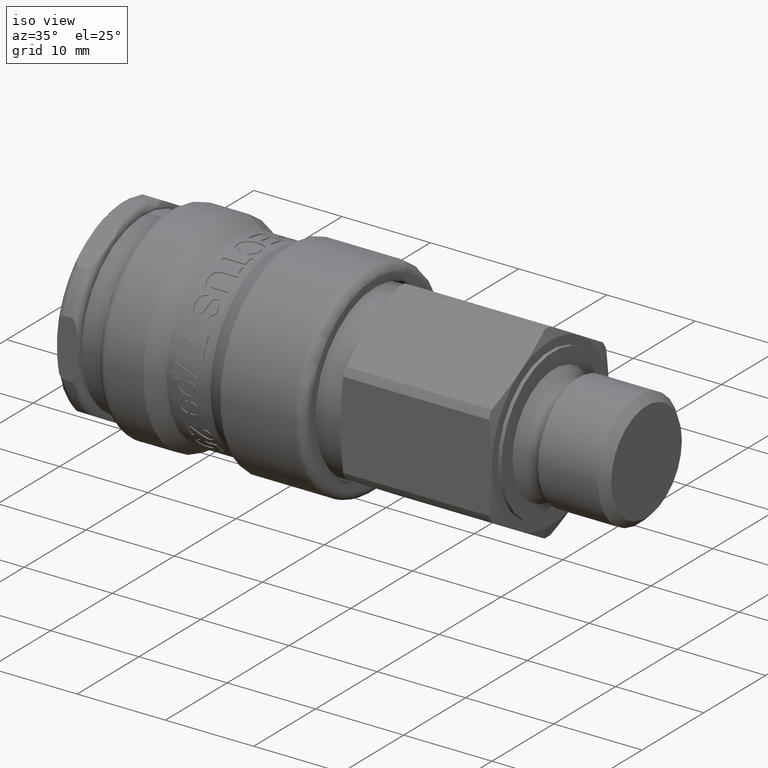
[diagram: clean part render]
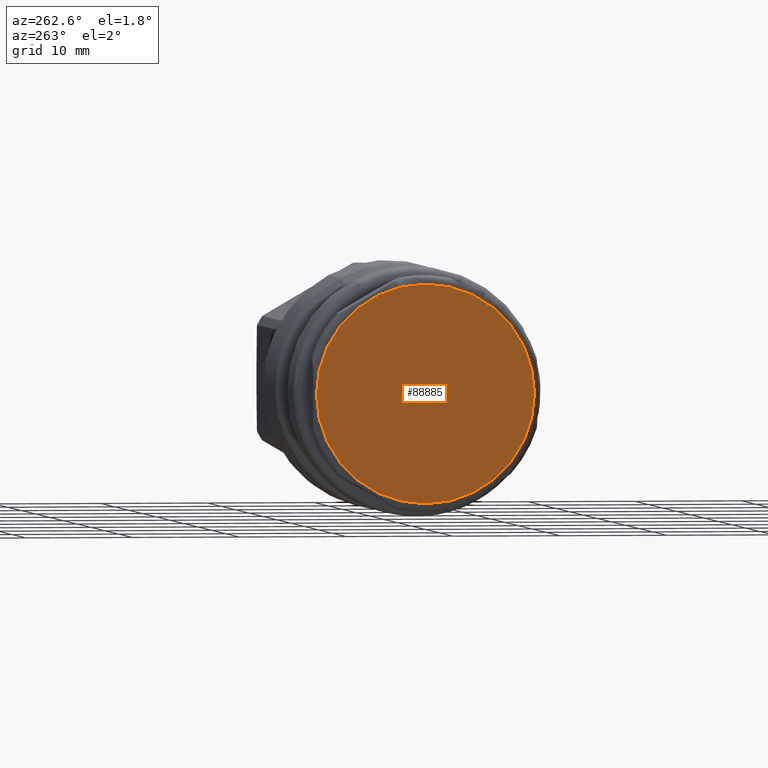
[diagram: tour spotlight — one face highlighted and labeled with its STEP entity id]
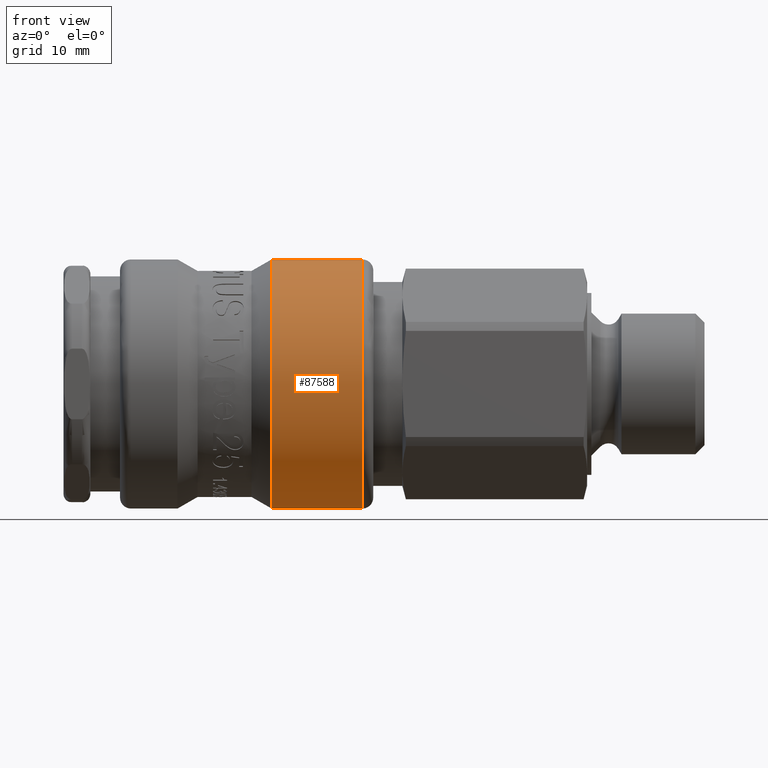
[diagram: tour spotlight — one face highlighted and labeled with its STEP entity id]
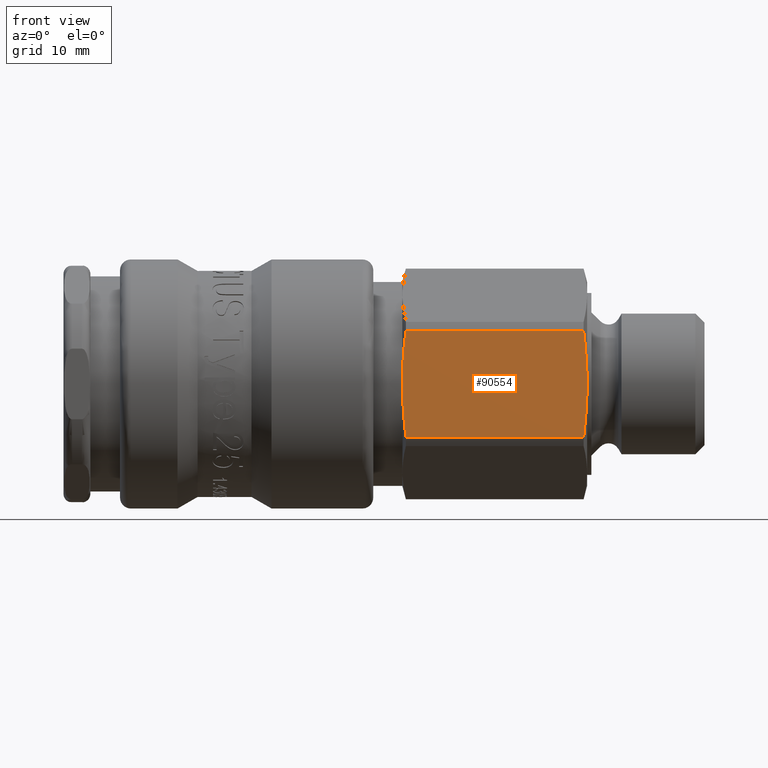
[diagram: tour spotlight — one face highlighted and labeled with its STEP entity id]
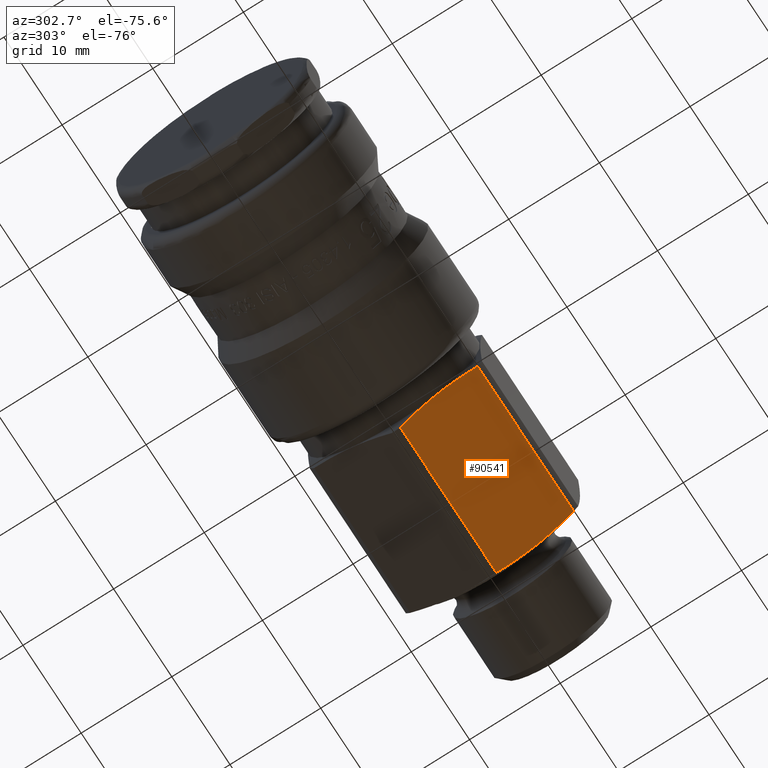
[diagram: tour spotlight — one face highlighted and labeled with its STEP entity id]
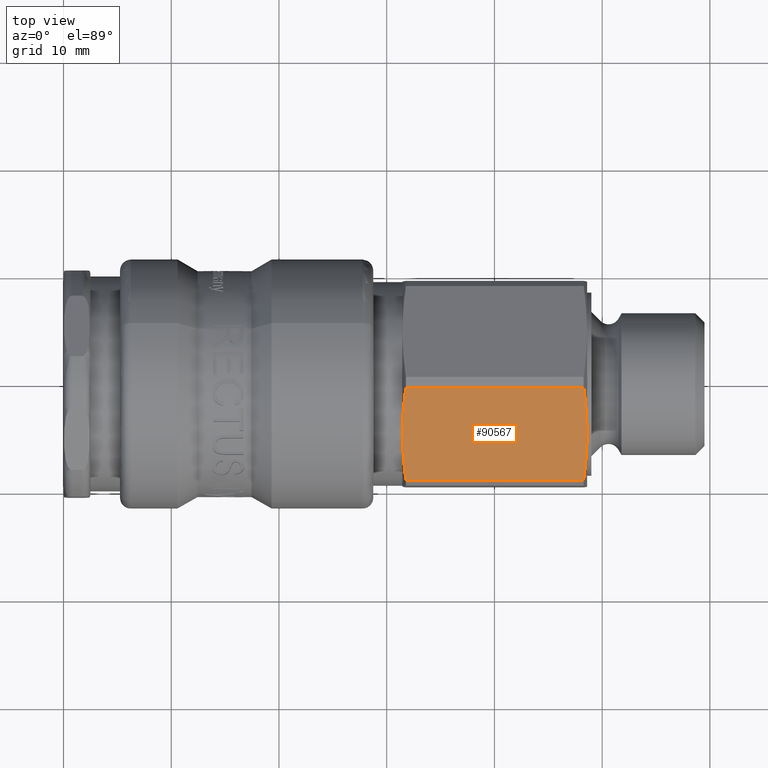
[diagram: tour spotlight — one face highlighted and labeled with its STEP entity id]
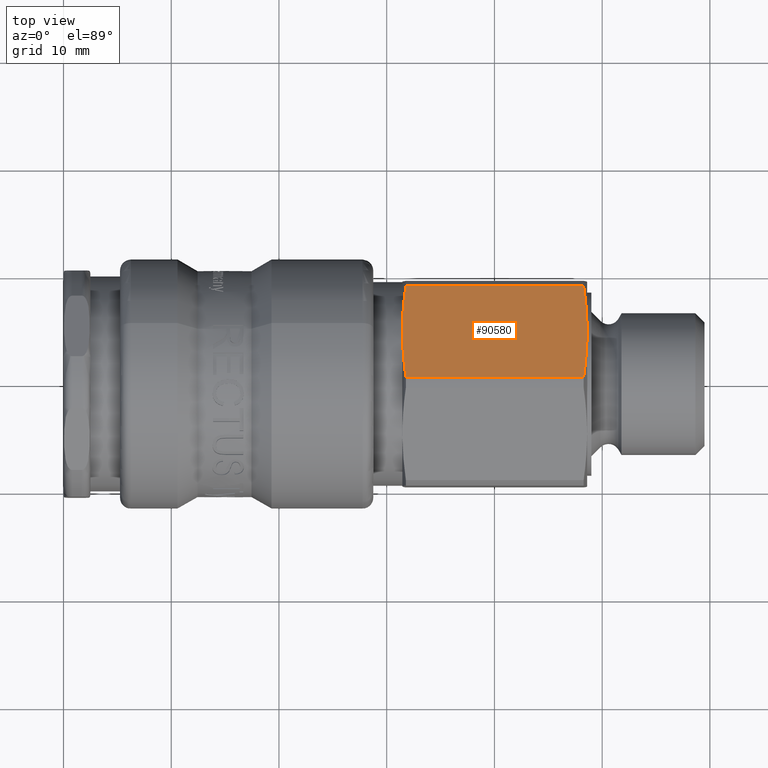
[diagram: tour spotlight — one face highlighted and labeled with its STEP entity id]
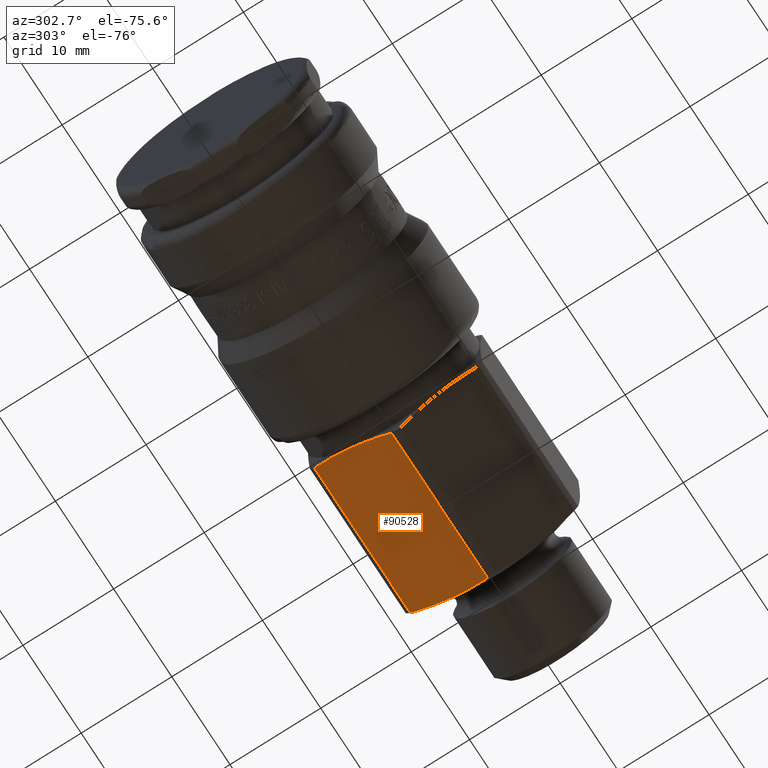
[diagram: tour spotlight — one face highlighted and labeled with its STEP entity id]
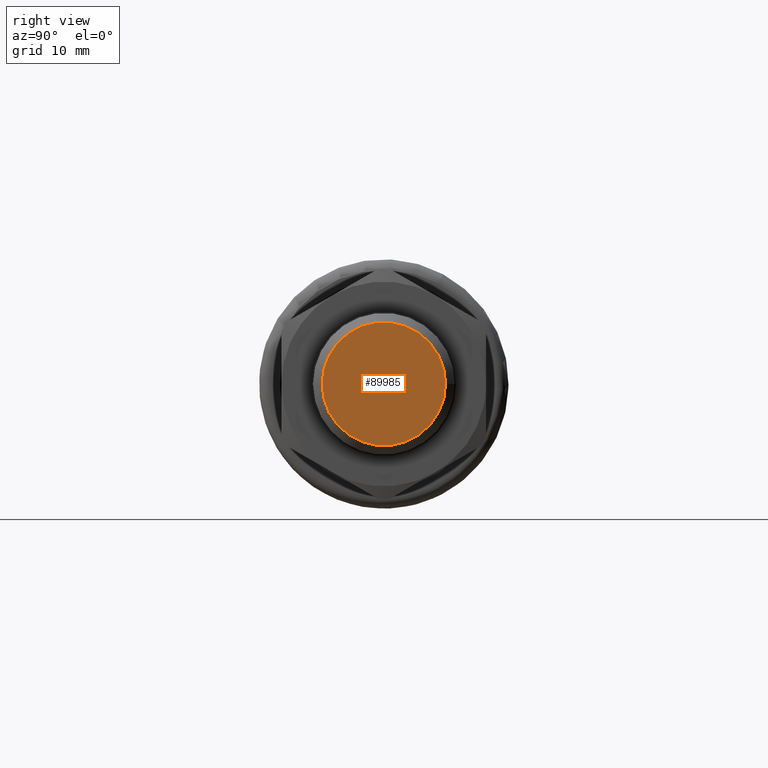
[diagram: tour spotlight — one face highlighted and labeled with its STEP entity id]
A machine part: a face-by-face anatomy tour. The part has 616 B-rep faces; the first image is the clean iso view, then the 8 largest visible faces are spotlighted one at a time (largest first), each with its STEP entity span.

Face 1 — auxiliary view, entity #88885. In plain terms, the highlighted planar face has unit normal (-1, 0, 0).
Definition (entity closure, byte-faithful):
#88869=CARTESIAN_POINT('',(-1.324698E-015,8.750000000000002,0.0));
#88870=DIRECTION('',(-1.0,0.0,0.0));
#88871=DIRECTION('',(0.0,0.0,1.0));
#88872=AXIS2_PLACEMENT_3D('',#88869,#88870,#88871);
#88873=PLANE('',#88872);
#88874=CARTESIAN_POINT('',(-1.387779E-015,10.199999999999999,0.0));
#88875=VERTEX_POINT('',#88874);
#88876=CARTESIAN_POINT('',(-1.387779E-015,0.0,0.0));
#88877=DIRECTION('',(1.0,0.0,0.0));
#88878=DIRECTION('',(0.0,-1.0,0.0));
#88879=AXIS2_PLACEMENT_3D('',#88876,#88877,#88878);
#88880=CIRCLE('',#88879,10.199999999999999);
#88881=EDGE_CURVE('',#88875,#88875,#88880,.T.);
#88882=ORIENTED_EDGE('',*,*,#88881,.F.);
#88883=EDGE_LOOP('',(#88882));
#88884=FACE_OUTER_BOUND('',#88883,.T.);
#88885=ADVANCED_FACE('',(#88884),#88873,.T.);

Face 2 — front view, entity #87588. In plain terms, the highlighted cylindrical surface (bore or boss wall) has radius 11.575 mm, axis along (1, 0, 0).
Definition (entity closure, byte-faithful):
#87546=CARTESIAN_POINT('',(27.75,5.497306160585965,10.186277532876453));
#87547=VERTEX_POINT('',#87546);
#87548=CARTESIAN_POINT('',(27.75,0.0,0.0));
#87549=DIRECTION('',(1.0,0.0,0.0));
#87550=DIRECTION('',(0.0,-0.474929257933993,-0.880023976922372));
#87551=AXIS2_PLACEMENT_3D('',#87548,#87549,#87550);
#87552=CIRCLE('',#87551,11.574999999999999);
#87553=EDGE_CURVE('',#87547,#87547,#87552,.T.);
#87569=CARTESIAN_POINT('',(24.030977309068273,0.0,0.0));
#87570=DIRECTION('',(1.0,0.0,0.0));
#87571=DIRECTION('',(0.0,0.474929257933993,0.880023976922372));
#87572=AXIS2_PLACEMENT_3D('',#87569,#87570,#87571);
#87573=CYLINDRICAL_SURFACE('',#87572,11.574999999999999);
#87574=CARTESIAN_POINT('',(19.311954618136546,5.497306160585965,10.186277532876453));
#87575=VERTEX_POINT('',#87574);
#87576=CARTESIAN_POINT('',(19.311954618136546,0.0,0.0));
#87577=DIRECTION('',(1.0,0.0,0.0));
#87578=DIRECTION('',(0.0,0.474929257933993,0.880023976922372));
#87579=AXIS2_PLACEMENT_3D('',#87576,#87577,#87578);
#87580=CIRCLE('',#87579,11.574999999999999);
#87581=EDGE_CURVE('',#87575,#87575,#87580,.T.);
#87582=ORIENTED_EDGE('',*,*,#87581,.T.);
#87583=EDGE_LOOP('',(#87582));
#87584=FACE_OUTER_BOUND('',#87583,.T.);
#87585=ORIENTED_EDGE('',*,*,#87553,.F.);
#87586=EDGE_LOOP('',(#87585));
#87587=FACE_BOUND('',#87586,.T.);
#87588=ADVANCED_FACE('',(#87584,#87587),#87573,.T.);

Face 3 — front view, entity #90554. In plain terms, the highlighted planar face has unit normal (0, 1, 0).
Definition (entity closure, byte-faithful):
#89798=CARTESIAN_POINT('',(48.599999999999987,-9.500000000000034,-1.582068E-015));
#89799=VERTEX_POINT('',#89798);
#90105=CARTESIAN_POINT('',(48.278460969082637,-9.500000000000036,4.92341345003646));
#90106=VERTEX_POINT('',#90105);
#90114=CARTESIAN_POINT('',(48.278460969082637,-9.500000000000036,4.923413450036498));
#90115=CARTESIAN_POINT('',(48.599999999999987,-9.500000000000034,2.315466721551831));
#90116=CARTESIAN_POINT('',(48.599999999999987,-9.500000000000034,-1.582068E-015));
#90124=(BOUNDED_CURVE()B_SPLINE_CURVE(2,(#90114,#90115,#90116),.UNSPECIFIED.,.F.,.U.)B_SPLINE_CURVE_WITH_KNOTS((3,3),(0.0,0.493628243022417),.UNSPECIFIED.)CURVE()GEOMETRIC_REPRESENTATION_ITEM()RATIONAL_B_SPLINE_CURVE((1.0,1.03109548284173,1.0))REPRESENTATION_ITEM(''));
#90125=EDGE_CURVE('',#90106,#89799,#90124,.T.);
#90136=CARTESIAN_POINT('',(48.278460969082637,-9.500000000000032,-4.923413450036463));
#90137=VERTEX_POINT('',#90136);
#90138=CARTESIAN_POINT('',(48.599999999999987,-9.500000000000034,-1.582068E-015));
#90139=CARTESIAN_POINT('',(48.599999999999987,-9.500000000000034,-2.315466721551835));
#90140=CARTESIAN_POINT('',(48.278460969082637,-9.500000000000032,-4.923413450036501));
#90148=(BOUNDED_CURVE()B_SPLINE_CURVE(2,(#90138,#90139,#90140),.UNSPECIFIED.,.F.,.U.)B_SPLINE_CURVE_WITH_KNOTS((3,3),(0.493628243022417,0.987256486044835),.UNSPECIFIED.)CURVE()GEOMETRIC_REPRESENTATION_ITEM()RATIONAL_B_SPLINE_CURVE((1.0,1.031095482841729,1.0))REPRESENTATION_ITEM(''));
#90149=EDGE_CURVE('',#89799,#90137,#90148,.T.);
#90300=CARTESIAN_POINT('',(31.778237760728118,-9.50000000000003,4.923413450036457));
#90301=VERTEX_POINT('',#90300);
#90309=CARTESIAN_POINT('',(31.778237760728118,-9.500000000000027,4.923413450036462));
#90310=DIRECTION('',(1.0,0.0,0.0));
#90311=VECTOR('',#90310,16.500223208354519);
#90312=LINE('',#90309,#90311);
#90313=EDGE_CURVE('',#90301,#90106,#90312,.T.);
#90324=CARTESIAN_POINT('',(31.778237760728118,-9.500000000000027,-4.923413450036461));
#90325=VERTEX_POINT('',#90324);
#90326=CARTESIAN_POINT('',(48.278460969082637,-9.500000000000036,-4.923413450036465));
#90327=DIRECTION('',(-1.0,0.0,0.0));
#90328=VECTOR('',#90327,16.500223208354519);
#90329=LINE('',#90326,#90328);
#90330=EDGE_CURVE('',#90137,#90325,#90329,.T.);
#90485=CARTESIAN_POINT('',(31.778237760728118,-9.500000000000027,-4.923413450036499));
#90486=CARTESIAN_POINT('',(31.171220150958909,-9.500000000000027,-1.942890E-015));
#90487=CARTESIAN_POINT('',(31.778237760728118,-9.50000000000003,4.923413450036494));
#90495=(BOUNDED_CURVE()B_SPLINE_CURVE(2,(#90485,#90486,#90487),.UNSPECIFIED.,.F.,.U.)B_SPLINE_CURVE_WITH_KNOTS((3,3),(0.0,0.986780367628046),.UNSPECIFIED.)CURVE()GEOMETRIC_REPRESENTATION_ITEM()RATIONAL_B_SPLINE_CURVE((1.0,1.126315789473696,1.0))REPRESENTATION_ITEM(''));
#90496=EDGE_CURVE('',#90325,#90301,#90495,.T.);
#90542=CARTESIAN_POINT('',(29.57407298495913,-9.500000000000027,-1.665335E-015));
#90543=DIRECTION('',(0.0,1.0,0.0));
#90544=DIRECTION('',(0.0,0.0,-1.0));
#90545=AXIS2_PLACEMENT_3D('',#90542,#90543,#90544);
#90546=PLANE('',#90545);
#90547=ORIENTED_EDGE('',*,*,#90125,.F.);
#90548=ORIENTED_EDGE('',*,*,#90313,.F.);
#90549=ORIENTED_EDGE('',*,*,#90496,.F.);
#90550=ORIENTED_EDGE('',*,*,#90330,.F.);
#90551=ORIENTED_EDGE('',*,*,#90149,.F.);
#90552=EDGE_LOOP('',(#90547,#90548,#90549,#90550,#90551));
#90553=FACE_OUTER_BOUND('',#90552,.T.);
#90554=ADVANCED_FACE('',(#90553),#90546,.F.);

Face 4 — auxiliary view, entity #90541. In plain terms, the highlighted planar face has unit normal (0, 0.5, 0.866).
Definition (entity closure, byte-faithful):
#89807=CARTESIAN_POINT('',(48.599999999999987,-4.75000000000003,-8.227241335952172));
#89808=VERTEX_POINT('',#89807);
#90151=CARTESIAN_POINT('',(48.278460969082637,-9.01380112106559,-5.765534610933944));
#90152=VERTEX_POINT('',#90151);
#90160=CARTESIAN_POINT('',(48.278460969082637,-9.013801121065622,-5.765534610933925));
#90161=CARTESIAN_POINT('',(48.599999999999987,-6.755253002481371,-7.069507975176265));
#90162=CARTESIAN_POINT('',(48.599999999999994,-4.750000000000029,-8.227241335952172));
#90170=(BOUNDED_CURVE()B_SPLINE_CURVE(2,(#90160,#90161,#90162),.UNSPECIFIED.,.F.,.U.)B_SPLINE_CURVE_WITH_KNOTS((3,3),(0.0,0.493628243022417),.UNSPECIFIED.)CURVE()GEOMETRIC_REPRESENTATION_ITEM()RATIONAL_B_SPLINE_CURVE((1.0,1.031095482841759,1.0))REPRESENTATION_ITEM(''));
#90171=EDGE_CURVE('',#90152,#89808,#90170,.T.);
#90182=CARTESIAN_POINT('',(48.278460969082637,-0.486198878934468,-10.6889480609704));
#90183=VERTEX_POINT('',#90182);
#90184=CARTESIAN_POINT('',(48.599999999999994,-4.750000000000029,-8.227241335952172));
#90185=CARTESIAN_POINT('',(48.599999999999994,-2.744746997518698,-9.384974696728074));
#90186=CARTESIAN_POINT('',(48.278460969082637,-0.486198878934438,-10.688948060970418));
#90194=(BOUNDED_CURVE()B_SPLINE_CURVE(2,(#90184,#90185,#90186),.UNSPECIFIED.,.F.,.U.)B_SPLINE_CURVE_WITH_KNOTS((3,3),(0.493628243022417,0.987256486044834),.UNSPECIFIED.)CURVE()GEOMETRIC_REPRESENTATION_ITEM()RATIONAL_B_SPLINE_CURVE((1.0,1.031095482841774,1.0))REPRESENTATION_ITEM(''));
#90195=EDGE_CURVE('',#89808,#90183,#90194,.T.);
#90332=CARTESIAN_POINT('',(31.778237760728118,-9.013801121065583,-5.765534610933947));
#90333=VERTEX_POINT('',#90332);
#90341=CARTESIAN_POINT('',(31.778237760728118,-9.013801121065585,-5.765534610933942));
#90342=DIRECTION('',(1.0,0.0,0.0));
#90343=VECTOR('',#90342,16.500223208354519);
#90344=LINE('',#90341,#90343);
#90345=EDGE_CURVE('',#90333,#90152,#90344,.T.);
#90356=CARTESIAN_POINT('',(31.778237760728125,-0.48619887893446,-10.688948060970404));
#90357=VERTEX_POINT('',#90356);
#90358=CARTESIAN_POINT('',(48.278460969082637,-0.486198878934465,-10.688948060970404));
#90359=DIRECTION('',(-1.0,0.0,0.0));
#90360=VECTOR('',#90359,16.500223208354519);
#90361=LINE('',#90358,#90360);
#90362=EDGE_CURVE('',#90183,#90357,#90361,.T.);
#90471=CARTESIAN_POINT('',(31.778237760728125,-0.486198878934428,-10.688948060970421));
#90472=CARTESIAN_POINT('',(31.171220150958909,-4.750000000000018,-8.227241335952177));
#90473=CARTESIAN_POINT('',(31.778237760728118,-9.013801121065617,-5.765534610933929));
#90481=(BOUNDED_CURVE()B_SPLINE_CURVE(2,(#90471,#90472,#90473),.UNSPECIFIED.,.F.,.U.)B_SPLINE_CURVE_WITH_KNOTS((3,3),(0.0,0.986780367628046),.UNSPECIFIED.)CURVE()GEOMETRIC_REPRESENTATION_ITEM()RATIONAL_B_SPLINE_CURVE((1.0,1.126315789473696,1.0))REPRESENTATION_ITEM(''));
#90482=EDGE_CURVE('',#90357,#90333,#90481,.T.);
#90529=CARTESIAN_POINT('',(29.57407298495913,-4.75000000000002,-8.227241335952176));
#90530=DIRECTION('',(9.260117E-017,0.5,0.866025403784439));
#90531=DIRECTION('',(5.288147E-016,0.866025403784439,-0.5));
#90532=AXIS2_PLACEMENT_3D('',#90529,#90530,#90531);
#90533=PLANE('',#90532);
#90534=ORIENTED_EDGE('',*,*,#90171,.F.);
#90535=ORIENTED_EDGE('',*,*,#90345,.F.);
#90536=ORIENTED_EDGE('',*,*,#90482,.F.);
#90537=ORIENTED_EDGE('',*,*,#90362,.F.);
#90538=ORIENTED_EDGE('',*,*,#90195,.F.);
#90539=EDGE_LOOP('',(#90534,#90535,#90536,#90537,#90538));
#90540=FACE_OUTER_BOUND('',#90539,.T.);
#90541=ADVANCED_FACE('',(#90540),#90533,.F.);

Face 5 — top view, entity #90567. In plain terms, the highlighted planar face has unit normal (0, 0.5, -0.866).
Definition (entity closure, byte-faithful):
#89701=CARTESIAN_POINT('',(31.778237760728125,-0.486198878934466,10.688948060970404));
#89702=VERTEX_POINT('',#89701);
#89710=CARTESIAN_POINT('',(48.278460969082637,-0.486198878934474,10.6889480609704));
#89711=VERTEX_POINT('',#89710);
#89712=CARTESIAN_POINT('',(31.778237760728118,-0.486198878934461,10.688948060970404));
#89713=DIRECTION('',(1.0,0.0,0.0));
#89714=VECTOR('',#89713,16.500223208354519);
#89715=LINE('',#89712,#89714);
#89716=EDGE_CURVE('',#89702,#89711,#89715,.T.);
#89749=CARTESIAN_POINT('',(48.599999999999987,-4.750000000000036,8.227241335952169));
#89750=VERTEX_POINT('',#89749);
#89751=CARTESIAN_POINT('',(48.278460969082637,-0.486198878934438,10.68894806097042));
#89752=CARTESIAN_POINT('',(48.599999999999987,-2.74474699751867,9.38497469672809));
#89753=CARTESIAN_POINT('',(48.599999999999994,-4.750000000000036,8.227241335952167));
#89761=(BOUNDED_CURVE()B_SPLINE_CURVE(2,(#89751,#89752,#89753),.UNSPECIFIED.,.F.,.U.)B_SPLINE_CURVE_WITH_KNOTS((3,3),(0.0,0.493628243022418),.UNSPECIFIED.)CURVE()GEOMETRIC_REPRESENTATION_ITEM()RATIONAL_B_SPLINE_CURVE((1.0,1.031095482841787,1.0))REPRESENTATION_ITEM(''));
#89762=EDGE_CURVE('',#89711,#89750,#89761,.T.);
#90090=CARTESIAN_POINT('',(48.278460969082637,-9.013801121065598,5.765534610933935));
#90091=VERTEX_POINT('',#90090);
#90092=CARTESIAN_POINT('',(48.599999999999994,-4.750000000000036,8.227241335952167));
#90093=CARTESIAN_POINT('',(48.599999999999994,-6.75525300248141,7.069507975176239));
#90094=CARTESIAN_POINT('',(48.278460969082637,-9.01380112106563,5.765534610933916));
#90102=(BOUNDED_CURVE()B_SPLINE_CURVE(2,(#90092,#90093,#90094),.UNSPECIFIED.,.F.,.U.)B_SPLINE_CURVE_WITH_KNOTS((3,3),(0.493628243022418,0.987256486044835),.UNSPECIFIED.)CURVE()GEOMETRIC_REPRESENTATION_ITEM()RATIONAL_B_SPLINE_CURVE((1.0,1.031095482841751,1.0))REPRESENTATION_ITEM(''));
#90103=EDGE_CURVE('',#89750,#90091,#90102,.T.);
#90292=CARTESIAN_POINT('',(31.778237760728118,-9.01380112106559,5.765534610933938));
#90293=VERTEX_POINT('',#90292);
#90294=CARTESIAN_POINT('',(48.278460969082637,-9.013801121065603,5.765534610933933));
#90295=DIRECTION('',(-1.0,0.0,0.0));
#90296=VECTOR('',#90295,16.500223208354519);
#90297=LINE('',#90294,#90296);
#90298=EDGE_CURVE('',#90091,#90293,#90297,.T.);
#90499=CARTESIAN_POINT('',(31.778237760728118,-9.013801121065619,5.765534610933923));
#90500=CARTESIAN_POINT('',(31.171220150958909,-4.750000000000022,8.227241335952174));
#90501=CARTESIAN_POINT('',(31.778237760728125,-0.486198878934434,10.688948060970421));
#90509=(BOUNDED_CURVE()B_SPLINE_CURVE(2,(#90499,#90500,#90501),.UNSPECIFIED.,.F.,.U.)B_SPLINE_CURVE_WITH_KNOTS((3,3),(0.0,0.986780367628046),.UNSPECIFIED.)CURVE()GEOMETRIC_REPRESENTATION_ITEM()RATIONAL_B_SPLINE_CURVE((1.0,1.126315789473696,1.0))REPRESENTATION_ITEM(''));
#90510=EDGE_CURVE('',#90293,#89702,#90509,.T.);
#90555=CARTESIAN_POINT('',(29.57407298495913,-4.750000000000026,8.227241335952172));
#90556=DIRECTION('',(9.260117E-017,0.5,-0.866025403784438));
#90557=DIRECTION('',(-5.288147E-016,-0.866025403784438,-0.5));
#90558=AXIS2_PLACEMENT_3D('',#90555,#90556,#90557);
#90559=PLANE('',#90558);
#90560=ORIENTED_EDGE('',*,*,#89762,.F.);
#90561=ORIENTED_EDGE('',*,*,#89716,.F.);
#90562=ORIENTED_EDGE('',*,*,#90510,.F.);
#90563=ORIENTED_EDGE('',*,*,#90298,.F.);
#90564=ORIENTED_EDGE('',*,*,#90103,.F.);
#90565=EDGE_LOOP('',(#90560,#90561,#90562,#90563,#90564));
#90566=FACE_OUTER_BOUND('',#90565,.T.);
#90567=ADVANCED_FACE('',(#90566),#90559,.F.);

Face 6 — top view, entity #90580. In plain terms, the highlighted planar face has unit normal (-0, -0.5, -0.866).
Definition (entity closure, byte-faithful):
#89691=CARTESIAN_POINT('',(48.278460969082637,0.4861988789344,10.688948060970402));
#89692=VERTEX_POINT('',#89691);
#89693=CARTESIAN_POINT('',(31.778237760728125,0.486198878934412,10.688948060970404));
#89694=VERTEX_POINT('',#89693);
#89695=CARTESIAN_POINT('',(48.278460969082637,0.486198878934397,10.688948060970404));
#89696=DIRECTION('',(-1.0,0.0,0.0));
#89697=VECTOR('',#89696,16.500223208354519);
#89698=LINE('',#89695,#89697);
#89699=EDGE_CURVE('',#89692,#89694,#89698,.T.);
#89733=CARTESIAN_POINT('',(48.599999999999994,4.749999999999965,8.227241335952174));
#89734=VERTEX_POINT('',#89733);
#89735=CARTESIAN_POINT('',(48.599999999999994,4.749999999999966,8.227241335952176));
#89736=CARTESIAN_POINT('',(48.599999999999994,2.744746997518619,9.384974696728083));
#89737=CARTESIAN_POINT('',(48.278460969082637,0.486198878934375,10.688948060970418));
#89745=(BOUNDED_CURVE()B_SPLINE_CURVE(2,(#89735,#89736,#89737),.UNSPECIFIED.,.F.,.U.)B_SPLINE_CURVE_WITH_KNOTS((3,3),(0.493628243022417,0.987256486044833),.UNSPECIFIED.)CURVE()GEOMETRIC_REPRESENTATION_ITEM()RATIONAL_B_SPLINE_CURVE((1.0,1.031095482841801,1.0))REPRESENTATION_ITEM(''));
#89746=EDGE_CURVE('',#89734,#89692,#89745,.T.);
#90260=CARTESIAN_POINT('',(48.278460969082644,9.01380112106553,5.765534610933948));
#90261=VERTEX_POINT('',#90260);
#90262=CARTESIAN_POINT('',(48.278460969082644,9.013801121065557,5.765534610933933));
#90263=CARTESIAN_POINT('',(48.599999999999994,6.755253002481323,7.069507975176261));
#90264=CARTESIAN_POINT('',(48.599999999999994,4.749999999999966,8.227241335952176));
#90272=(BOUNDED_CURVE()B_SPLINE_CURVE(2,(#90262,#90263,#90264),.UNSPECIFIED.,.F.,.U.)B_SPLINE_CURVE_WITH_KNOTS((3,3),(0.0,0.493628243022417),.UNSPECIFIED.)CURVE()GEOMETRIC_REPRESENTATION_ITEM()RATIONAL_B_SPLINE_CURVE((1.0,1.031095482841759,1.0))REPRESENTATION_ITEM(''));
#90273=EDGE_CURVE('',#90261,#89734,#90272,.T.);
#90413=CARTESIAN_POINT('',(31.778237760728128,9.013801121065541,5.765534610933951));
#90414=VERTEX_POINT('',#90413);
#90415=CARTESIAN_POINT('',(31.778237760728132,9.013801121065546,5.765534610933947));
#90416=DIRECTION('',(1.0,0.0,0.0));
#90417=VECTOR('',#90416,16.500223208354519);
#90418=LINE('',#90415,#90417);
#90419=EDGE_CURVE('',#90414,#90261,#90418,.T.);
#90441=CARTESIAN_POINT('',(31.778237760728125,0.486198878934383,10.688948060970421));
#90442=CARTESIAN_POINT('',(31.171220150958924,4.749999999999993,8.22724133595217));
#90443=CARTESIAN_POINT('',(31.778237760728128,9.013801121065573,5.765534610933933));
#90451=(BOUNDED_CURVE()B_SPLINE_CURVE(2,(#90441,#90442,#90443),.UNSPECIFIED.,.F.,.U.)B_SPLINE_CURVE_WITH_KNOTS((3,3),(0.0,0.986780367628046),.UNSPECIFIED.)CURVE()GEOMETRIC_REPRESENTATION_ITEM()RATIONAL_B_SPLINE_CURVE((1.0,1.126315789473696,1.0))REPRESENTATION_ITEM(''));
#90452=EDGE_CURVE('',#89694,#90414,#90451,.T.);
#90568=CARTESIAN_POINT('',(29.574072984959141,4.749999999999981,8.227241335952177));
#90569=DIRECTION('',(-5.180215E-016,-0.499999999999999,-0.866025403784439));
#90570=DIRECTION('',(-5.288147E-016,-0.866025403784439,0.499999999999999));
#90571=AXIS2_PLACEMENT_3D('',#90568,#90569,#90570);
#90572=PLANE('',#90571);
#90573=ORIENTED_EDGE('',*,*,#90273,.F.);
#90574=ORIENTED_EDGE('',*,*,#90419,.F.);
#90575=ORIENTED_EDGE('',*,*,#90452,.F.);
#90576=ORIENTED_EDGE('',*,*,#89699,.F.);
#90577=ORIENTED_EDGE('',*,*,#89746,.F.);
#90578=EDGE_LOOP('',(#90573,#90574,#90575,#90576,#90577));
#90579=FACE_OUTER_BOUND('',#90578,.T.);
#90580=ADVANCED_FACE('',(#90579),#90572,.F.);

Face 7 — auxiliary view, entity #90528. In plain terms, the highlighted planar face has unit normal (-0, -0.5, 0.866).
Definition (entity closure, byte-faithful):
#89781=CARTESIAN_POINT('',(48.599999999999994,4.749999999999973,-8.22724133595217));
#89782=VERTEX_POINT('',#89781);
#90197=CARTESIAN_POINT('',(48.278460969082637,0.486198878934411,-10.6889480609704));
#90198=VERTEX_POINT('',#90197);
#90206=CARTESIAN_POINT('',(48.278460969082637,0.486198878934376,-10.68894806097042));
#90207=CARTESIAN_POINT('',(48.599999999999994,2.744746997518597,-9.384974696728097));
#90208=CARTESIAN_POINT('',(48.599999999999994,4.749999999999973,-8.22724133595217));
#90216=(BOUNDED_CURVE()B_SPLINE_CURVE(2,(#90206,#90207,#90208),.UNSPECIFIED.,.F.,.U.)B_SPLINE_CURVE_WITH_KNOTS((3,3),(0.0,0.493628243022417),.UNSPECIFIED.)CURVE()GEOMETRIC_REPRESENTATION_ITEM()RATIONAL_B_SPLINE_CURVE((1.0,1.031095482841757,1.0))REPRESENTATION_ITEM(''));
#90217=EDGE_CURVE('',#90198,#89782,#90216,.T.);
#90228=CARTESIAN_POINT('',(48.278460969082644,9.013801121065535,-5.765534610933939));
#90229=VERTEX_POINT('',#90228);
#90230=CARTESIAN_POINT('',(48.599999999999994,4.749999999999973,-8.22724133595217));
#90231=CARTESIAN_POINT('',(48.599999999999994,6.75525300248135,-7.069507975176243));
#90232=CARTESIAN_POINT('',(48.278460969082644,9.013801121065569,-5.765534610933917));
#90240=(BOUNDED_CURVE()B_SPLINE_CURVE(2,(#90230,#90231,#90232),.UNSPECIFIED.,.F.,.U.)B_SPLINE_CURVE_WITH_KNOTS((3,3),(0.493628243022417,0.987256486044835),.UNSPECIFIED.)CURVE()GEOMETRIC_REPRESENTATION_ITEM()RATIONAL_B_SPLINE_CURVE((1.0,1.031095482841761,1.0))REPRESENTATION_ITEM(''));
#90241=EDGE_CURVE('',#89782,#90229,#90240,.T.);
#90364=CARTESIAN_POINT('',(31.778237760728125,0.486198878934424,-10.688948060970404));
#90365=VERTEX_POINT('',#90364);
#90373=CARTESIAN_POINT('',(31.778237760728118,0.486198878934418,-10.688948060970404));
#90374=DIRECTION('',(1.0,0.0,0.0));
#90375=VECTOR('',#90374,16.500223208354519);
#90376=LINE('',#90373,#90375);
#90377=EDGE_CURVE('',#90365,#90198,#90376,.T.);
#90388=CARTESIAN_POINT('',(31.778237760728128,9.013801121065548,-5.765534610933941));
#90389=VERTEX_POINT('',#90388);
#90390=CARTESIAN_POINT('',(48.278460969082651,9.013801121065541,-5.765534610933938));
#90391=DIRECTION('',(-1.0,0.0,0.0));
#90392=VECTOR('',#90391,16.500223208354519);
#90393=LINE('',#90390,#90392);
#90394=EDGE_CURVE('',#90229,#90389,#90393,.T.);
#90457=CARTESIAN_POINT('',(31.778237760728128,9.013801121065574,-5.765534610933926));
#90458=CARTESIAN_POINT('',(31.171220150958924,4.749999999999982,-8.227241335952176));
#90459=CARTESIAN_POINT('',(31.778237760728125,0.486198878934397,-10.68894806097042));
#90467=(BOUNDED_CURVE()B_SPLINE_CURVE(2,(#90457,#90458,#90459),.UNSPECIFIED.,.F.,.U.)B_SPLINE_CURVE_WITH_KNOTS((3,3),(0.0,0.986780367628045),.UNSPECIFIED.)CURVE()GEOMETRIC_REPRESENTATION_ITEM()RATIONAL_B_SPLINE_CURVE((1.0,1.126315789473696,1.0))REPRESENTATION_ITEM(''));
#90468=EDGE_CURVE('',#90389,#90365,#90467,.T.);
#90516=CARTESIAN_POINT('',(29.574072984959141,4.749999999999987,-8.227241335952174));
#90517=DIRECTION('',(-5.180215E-016,-0.5,0.866025403784439));
#90518=DIRECTION('',(5.288147E-016,0.866025403784439,0.5));
#90519=AXIS2_PLACEMENT_3D('',#90516,#90517,#90518);
#90520=PLANE('',#90519);
#90521=ORIENTED_EDGE('',*,*,#90217,.F.);
#90522=ORIENTED_EDGE('',*,*,#90377,.F.);
#90523=ORIENTED_EDGE('',*,*,#90468,.F.);
#90524=ORIENTED_EDGE('',*,*,#90394,.F.);
#90525=ORIENTED_EDGE('',*,*,#90241,.F.);
#90526=EDGE_LOOP('',(#90521,#90522,#90523,#90524,#90525));
#90527=FACE_OUTER_BOUND('',#90526,.T.);
#90528=ADVANCED_FACE('',(#90527),#90520,.F.);

Face 8 — right view, entity #89985. In plain terms, the highlighted planar face has unit normal (1, 0, 0).
Definition (entity closure, byte-faithful):
#89969=CARTESIAN_POINT('',(59.499999999999993,5.664249999999964,-1.117076E-030));
#89970=DIRECTION('',(1.0,0.0,0.0));
#89971=DIRECTION('',(0.0,0.0,-1.0));
#89972=AXIS2_PLACEMENT_3D('',#89969,#89970,#89971);
#89973=PLANE('',#89972);
#89974=CARTESIAN_POINT('',(59.499999999999993,5.728499999999964,-7.015389E-016));
#89975=VERTEX_POINT('',#89974);
#89976=CARTESIAN_POINT('',(59.499999999999993,-3.610056E-014,1.493517E-045));
#89977=DIRECTION('',(-1.0,0.0,0.0));
#89978=DIRECTION('',(0.0,-1.0,0.0));
#89979=AXIS2_PLACEMENT_3D('',#89976,#89977,#89978);
#89980=CIRCLE('',#89979,5.7285);
#89981=EDGE_CURVE('',#89975,#89975,#89980,.T.);
#89982=ORIENTED_EDGE('',*,*,#89981,.F.);
#89983=EDGE_LOOP('',(#89982));
#89984=FACE_OUTER_BOUND('',#89983,.T.);
#89985=ADVANCED_FACE('',(#89984),#89973,.T.);